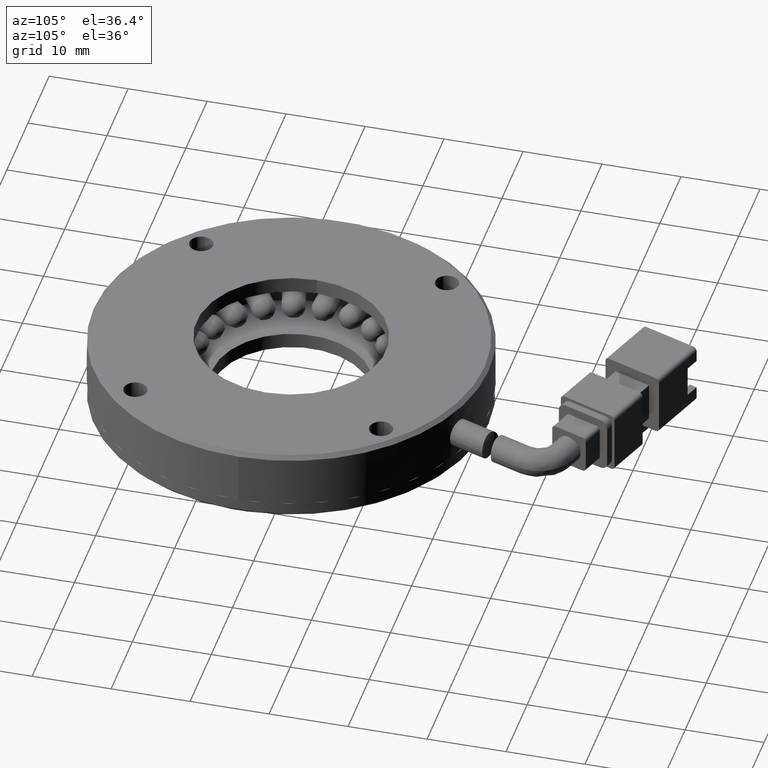
[diagram: clean part render]
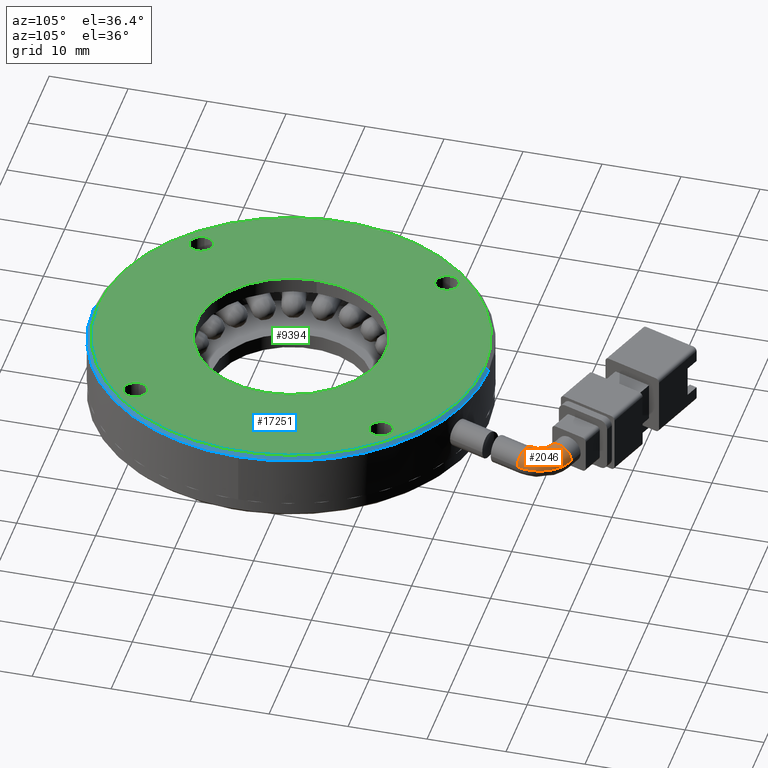
[diagram: same view with three faces highlighted in distinct colors, each labeled with its STEP entity id]
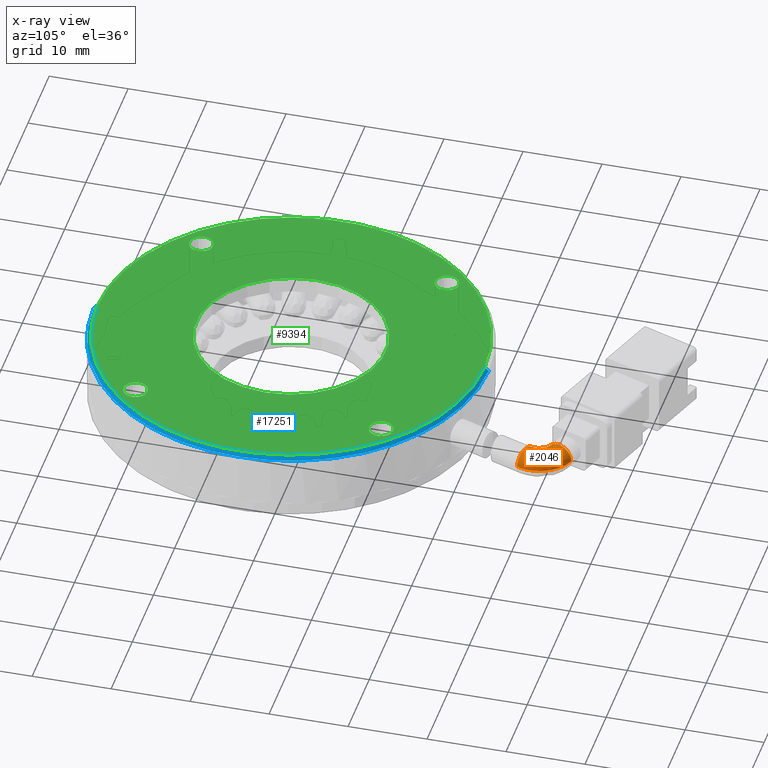
[diagram: x-ray of the same camera — body ghosted, the three highlighted faces saturated]
A machine part, auxiliary view with three faces highlighted in distinct colors.
The next image is the same camera in x-ray (body ghosted, the three faces saturated) — at least one of them is partly hidden behind the body in this view.
Their STEP definitions:

[orange] entity #2046 — the highlighted face is a freeform B-spline surface patch.
#120 = CARTESIAN_POINT ( 'NONE',  ( -106.4522803343568600, 41.33666212137088500, 3.000000000000062200 ) ) ;
#360 = ORIENTED_EDGE ( 'NONE', *, *, #7212, .F. ) ;
#1261 = CARTESIAN_POINT ( 'NONE',  ( -107.4039464507949900, 38.72198095559715400, -0.4999999999999383300 ) ) ;
#1283 = CARTESIAN_POINT ( 'NONE',  ( -107.4039464507949600, 38.72198095559716100, -0.4999999999999375500 ) ) ;
#1376 = VERTEX_POINT ( 'NONE', #25427 ) ;
#2046 = ADVANCED_FACE ( 'NONE', ( #11394 ), #5481, .T. ) ;
#2535 = CARTESIAN_POINT ( 'NONE',  ( -110.2428907187311000, 44.81011658512712600, -0.4999999999999375500 ) ) ;
#2674 = CARTESIAN_POINT ( 'NONE',  ( -111.8674863995280300, 40.34657663639407600, -0.4999999999999375500 ) ) ;
#3022 = DIRECTION ( 'NONE',  ( -2.838830328892222800E-018, -1.846718983974339600E-018, -1.000000000000000000 ) ) ;
#3613 = CARTESIAN_POINT ( 'NONE',  ( -110.8414259695510100, 43.16565449875177100, -0.4999999999999204500 ) ) ;
#3703 = CARTESIAN_POINT ( 'NONE',  ( -111.4399612203709800, 41.52119241237646500, 3.000000000000061700 ) ) ;
#4037 = CIRCLE ( 'NONE', #23412, 4.750000000000001800 ) ;
#4481 = CIRCLE ( 'NONE', #25948, 1.749999999999996200 ) ;
#4728 = DIRECTION ( 'NONE',  ( 0.9396926207859085400, -0.3420201433256683800, 0.0000000000000000000 ) ) ;
#4814 = AXIS2_PLACEMENT_3D ( 'NONE', #15238, #3022, #17311 ) ;
#5481 =( BOUNDED_SURFACE ( )  B_SPLINE_SURFACE ( 3, 3, ( 
 ( #26216, #17619, #16276, #1283 ),
 ( #23920, #15562, #120, #6120 ),
 ( #3703, #26126, #23573, #20539 ),
 ( #22088, #22259, #26302, #7986 ) ),
 .UNSPECIFIED., .F., .F., .T. ) 
 B_SPLINE_SURFACE_WITH_KNOTS ( ( 4, 4 ),
 ( 4, 4 ),
 ( 0.0000000000000000000, 1.000000000000000000 ),
 ( 0.0000000000000000000, 1.000000000000000000 ),
 .UNSPECIFIED. ) 
 GEOMETRIC_REPRESENTATION_ITEM ( )  RATIONAL_B_SPLINE_SURFACE ( (
 ( 1.000000000000000000, 0.8047378541243658300, 0.8047378541243658300, 1.000000000000000000),
 ( 0.3333333333333333700, 0.2682459513747886300, 0.2682459513747886300, 0.3333333333333333700),
 ( 0.3333333333333333700, 0.2682459513747886300, 0.2682459513747886300, 0.3333333333333333700),
 ( 1.000000000000000000, 0.8047378541243658300, 0.8047378541243658300, 1.000000000000000000) ) ) 
 REPRESENTATION_ITEM ( '' )  SURFACE ( )  );
#5678 = DIRECTION ( 'NONE',  ( 0.3420201433256679900, 0.9396926207859087600, -6.195440985631467600E-017 ) ) ;
#6120 = CARTESIAN_POINT ( 'NONE',  ( -107.4039464507949600, 38.72198095559716100, 3.000000000000061700 ) ) ;
#6150 = AXIS2_PLACEMENT_3D ( 'NONE', #3613, #17886, #5678 ) ;
#6256 = CARTESIAN_POINT ( 'NONE',  ( -109.0484085371703000, 39.32051620641706800, -0.4999999999999375500 ) ) ;
#7212 = EDGE_CURVE ( 'NONE', #14380, #7659, #4037, .T. ) ;
#7557 = CARTESIAN_POINT ( 'NONE',  ( -110.6928706235456600, 39.91905145723699600, -0.4999999999999376600 ) ) ;
#7659 = VERTEX_POINT ( 'NONE', #1261 ) ;
#7986 = CARTESIAN_POINT ( 'NONE',  ( -110.6928706235456300, 39.91905145723701100, -0.4999999999999373300 ) ) ;
#8100 = EDGE_CURVE ( 'NONE', #1376, #11597, #22464, .T. ) ;
#8316 = DIRECTION ( 'NONE',  ( 0.9396926207859087600, -0.3420201433256679900, 0.0000000000000000000 ) ) ;
#9641 = EDGE_LOOP ( 'NONE', ( #18071, #23401, #25328, #360 ) ) ;
#11394 = FACE_OUTER_BOUND ( 'NONE', #9641, .T. ) ;
#11597 = VERTEX_POINT ( 'NONE', #7557 ) ;
#14380 = VERTEX_POINT ( 'NONE', #2535 ) ;
#15184 = CIRCLE ( 'NONE', #6150, 1.749999999999996200 ) ;
#15238 = CARTESIAN_POINT ( 'NONE',  ( -111.8674863995280300, 40.34657663639407600, -0.4999999999999373300 ) ) ;
#15562 = CARTESIAN_POINT ( 'NONE',  ( -107.6282095529574100, 43.85845046868904300, 3.000000000000062200 ) ) ;
#16276 = CARTESIAN_POINT ( 'NONE',  ( -106.4522803343568600, 41.33666212137087800, -0.4999999999999375500 ) ) ;
#16806 = EDGE_CURVE ( 'NONE', #11597, #7659, #4481, .T. ) ;
#16970 = DIRECTION ( 'NONE',  ( -2.838830328892222800E-018, -1.846718983974339600E-018, -1.000000000000000000 ) ) ;
#17311 = DIRECTION ( 'NONE',  ( 0.9396926207859080900, -0.3420201433256696000, 0.0000000000000000000 ) ) ;
#17619 = CARTESIAN_POINT ( 'NONE',  ( -107.6282095529573900, 43.85845046868904300, -0.4999999999999375500 ) ) ;
#17886 = DIRECTION ( 'NONE',  ( -0.9396926207859080900, 0.3420201433256694900, 2.200085921048893100E-016 ) ) ;
#18071 = ORIENTED_EDGE ( 'NONE', *, *, #22298, .F. ) ;
#20518 = DIRECTION ( 'NONE',  ( 0.3420201433256692700, 0.9396926207859082100, -2.706285357870903100E-018 ) ) ;
#20539 = CARTESIAN_POINT ( 'NONE',  ( -110.6928706235456300, 39.91905145723701100, 3.000000000000061700 ) ) ;
#22088 = CARTESIAN_POINT ( 'NONE',  ( -111.4399612203709600, 41.52119241237646500, -0.4999999999999373300 ) ) ;
#22259 = CARTESIAN_POINT ( 'NONE',  ( -110.7518872293778900, 41.27075396068223500, -0.4999999999999372700 ) ) ;
#22298 = EDGE_CURVE ( 'NONE', #1376, #14380, #15184, .T. ) ;
#22464 = CIRCLE ( 'NONE', #4814, 1.250000000000008700 ) ;
#23401 = ORIENTED_EDGE ( 'NONE', *, *, #8100, .T. ) ;
#23412 = AXIS2_PLACEMENT_3D ( 'NONE', #2674, #16970, #4728 ) ;
#23573 = CARTESIAN_POINT ( 'NONE',  ( -110.4424321718514100, 40.60712544823011400, 3.000000000000062200 ) ) ;
#23920 = CARTESIAN_POINT ( 'NONE',  ( -110.2428907187310900, 44.81011658512714000, 3.000000000000061700 ) ) ;
#25328 = ORIENTED_EDGE ( 'NONE', *, *, #16806, .T. ) ;
#25427 = CARTESIAN_POINT ( 'NONE',  ( -111.4399612203709300, 41.52119241237645000, -0.4999999999999373300 ) ) ;
#25948 = AXIS2_PLACEMENT_3D ( 'NONE', #6256, #20518, #8316 ) ;
#26126 = CARTESIAN_POINT ( 'NONE',  ( -110.7518872293779000, 41.27075396068224900, 3.000000000000062200 ) ) ;
#26216 = CARTESIAN_POINT ( 'NONE',  ( -110.2428907187311000, 44.81011658512714000, -0.4999999999999375500 ) ) ;
#26302 = CARTESIAN_POINT ( 'NONE',  ( -110.4424321718514100, 40.60712544823010000, -0.4999999999999372700 ) ) ;

[blue] entity #17251 — the highlighted conical surface has half-angle 45 deg.
#30 = EDGE_CURVE ( 'NONE', #22153, #94, #23762, .T. ) ;
#94 = VERTEX_POINT ( 'NONE', #24756 ) ;
#169 = DIRECTION ( 'NONE',  ( 0.0000000000000000000, -8.673617379884035500E-018, -1.000000000000000000 ) ) ;
#536 = EDGE_CURVE ( 'NONE', #22153, #14027, #16401, .T. ) ;
#997 = ORIENTED_EDGE ( 'NONE', *, *, #536, .F. ) ;
#2456 = AXIS2_PLACEMENT_3D ( 'NONE', #8324, #22589, #10345 ) ;
#2720 = EDGE_CURVE ( 'NONE', #8083, #20612, #14239, .T. ) ;
#3301 = ORIENTED_EDGE ( 'NONE', *, *, #25234, .T. ) ;
#3727 = DIRECTION ( 'NONE',  ( -1.000000000000000000, 0.0000000000000000000, 0.0000000000000000000 ) ) ;
#3815 = DIRECTION ( 'NONE',  ( 0.0000000000000000000, 0.0000000000000000000, 1.000000000000000000 ) ) ;
#3852 = FACE_OUTER_BOUND ( 'NONE', #10570, .T. ) ;
#3901 = CARTESIAN_POINT ( 'NONE',  ( -121.0083944312392800, 6.460725025466879300, 3.000000000000048800 ) ) ;
#5220 = DIRECTION ( 'NONE',  ( 8.659560562354930400E-017, -0.7071067811865472400, -0.7071067811865479100 ) ) ;
#6010 = LINE ( 'NONE', #17456, #16862 ) ;
#6132 = ORIENTED_EDGE ( 'NONE', *, *, #30, .T. ) ;
#6185 = VECTOR ( 'NONE', #8090, 999.9999999999998900 ) ;
#6492 = ORIENTED_EDGE ( 'NONE', *, *, #14867, .T. ) ;
#6968 = CARTESIAN_POINT ( 'NONE',  ( -96.00839443123928200, 6.460725025466882900, 3.000000000000048800 ) ) ;
#7088 = CARTESIAN_POINT ( 'NONE',  ( -121.0083944312392800, 30.96072502546687100, 3.500000000000063100 ) ) ;
#8083 = VERTEX_POINT ( 'NONE', #17132 ) ;
#8090 = DIRECTION ( 'NONE',  ( 0.0000000000000000000, 0.7071067811865472400, -0.7071067811865479100 ) ) ;
#8324 = CARTESIAN_POINT ( 'NONE',  ( -121.0083944312392800, 6.460725025466879300, 3.000000000000048800 ) ) ;
#8463 = CIRCLE ( 'NONE', #2456, 25.00000000000002100 ) ;
#9274 = CARTESIAN_POINT ( 'NONE',  ( -121.0083944312392800, 31.46072502546688900, 3.000000000000048400 ) ) ;
#9403 = DIRECTION ( 'NONE',  ( 0.0000000000000000000, -8.673617379884035500E-018, -1.000000000000000000 ) ) ;
#9424 = DIRECTION ( 'NONE',  ( 0.0000000000000000000, 1.000000000000000000, 0.0000000000000000000 ) ) ;
#9568 = CARTESIAN_POINT ( 'NONE',  ( -121.0083944312392800, 6.460725025466879300, 3.500000000000063100 ) ) ;
#10345 = DIRECTION ( 'NONE',  ( -1.000000000000000000, 0.0000000000000000000, 0.0000000000000000000 ) ) ;
#10570 = EDGE_LOOP ( 'NONE', ( #6132, #3301, #14200, #6492, #997 ) ) ;
#11229 = CARTESIAN_POINT ( 'NONE',  ( -121.0083944312392800, 31.46072502546688900, 3.000000000000048800 ) ) ;
#14027 = VERTEX_POINT ( 'NONE', #11229 ) ;
#14200 = ORIENTED_EDGE ( 'NONE', *, *, #2720, .T. ) ;
#14239 = CIRCLE ( 'NONE', #26053, 25.00000000000002100 ) ;
#14462 = CARTESIAN_POINT ( 'NONE',  ( -121.0083944312392800, 6.460725025466879300, 3.000000000000048800 ) ) ;
#14573 = AXIS2_PLACEMENT_3D ( 'NONE', #9568, #9403, #9424 ) ;
#14867 = EDGE_CURVE ( 'NONE', #20612, #14027, #8463, .T. ) ;
#16401 = LINE ( 'NONE', #9274, #6185 ) ;
#16862 = VECTOR ( 'NONE', #5220, 999.9999999999998900 ) ;
#17132 = CARTESIAN_POINT ( 'NONE',  ( -121.0083944312392800, -18.53927497453312900, 3.000000000000048800 ) ) ;
#17251 = ADVANCED_FACE ( 'NONE', ( #3852 ), #17569, .T. ) ;
#17456 = CARTESIAN_POINT ( 'NONE',  ( -121.0083944312392800, -18.53927497453312900, 3.000000000000048800 ) ) ;
#17569 = CONICAL_SURFACE ( 'NONE', #22601, 25.00000000000000700, 0.7853981633974479500 ) ;
#20612 = VERTEX_POINT ( 'NONE', #6968 ) ;
#22153 = VERTEX_POINT ( 'NONE', #7088 ) ;
#22589 = DIRECTION ( 'NONE',  ( 0.0000000000000000000, 0.0000000000000000000, 1.000000000000000000 ) ) ;
#22601 = AXIS2_PLACEMENT_3D ( 'NONE', #14462, #169, #22649 ) ;
#22649 = DIRECTION ( 'NONE',  ( 0.0000000000000000000, 1.000000000000000000, -1.734723475976806500E-017 ) ) ;
#23762 = CIRCLE ( 'NONE', #14573, 24.49999999999999300 ) ;
#24756 = CARTESIAN_POINT ( 'NONE',  ( -121.0083944312392800, -18.03927497453311400, 3.500000000000063100 ) ) ;
#25234 = EDGE_CURVE ( 'NONE', #94, #8083, #6010, .T. ) ;
#26053 = AXIS2_PLACEMENT_3D ( 'NONE', #3901, #3815, #3727 ) ;

[green] entity #9394 — the highlighted planar face has unit normal (0, 0, -1).
#30 = EDGE_CURVE ( 'NONE', #22153, #94, #23762, .T. ) ;
#56 = CARTESIAN_POINT ( 'NONE',  ( -121.0083944312392800, 6.460725025466879300, 3.500000000000063100 ) ) ;
#73 = ORIENTED_EDGE ( 'NONE', *, *, #15315, .F. ) ;
#94 = VERTEX_POINT ( 'NONE', #24756 ) ;
#220 = PLANE ( 'NONE',  #25957 ) ;
#254 = EDGE_CURVE ( 'NONE', #7464, #2846, #8119, .T. ) ;
#271 = ORIENTED_EDGE ( 'NONE', *, *, #2106, .F. ) ;
#310 = DIRECTION ( 'NONE',  ( 0.0000000000000000000, 0.0000000000000000000, -1.000000000000000000 ) ) ;
#315 = EDGE_CURVE ( 'NONE', #10918, #19915, #16426, .T. ) ;
#754 = FACE_OUTER_BOUND ( 'NONE', #24486, .T. ) ;
#970 = EDGE_CURVE ( 'NONE', #25691, #11404, #20778, .T. ) ;
#1092 = AXIS2_PLACEMENT_3D ( 'NONE', #3736, #18009, #5786 ) ;
#1384 = EDGE_CURVE ( 'NONE', #18615, #17551, #22019, .T. ) ;
#1463 = CARTESIAN_POINT ( 'NONE',  ( -105.4520452451353200, -9.095624160637248300, 3.500000000000063100 ) ) ;
#1509 = CIRCLE ( 'NONE', #16612, 1.499999999999987600 ) ;
#1603 = AXIS2_PLACEMENT_3D ( 'NONE', #22148, #22231, #22315 ) ;
#1699 = EDGE_LOOP ( 'NONE', ( #24219, #73 ) ) ;
#1764 = DIRECTION ( 'NONE',  ( -1.000000000000000000, 0.0000000000000000000, 0.0000000000000000000 ) ) ;
#2101 = DIRECTION ( 'NONE',  ( -1.000000000000000000, 0.0000000000000000000, 0.0000000000000000000 ) ) ;
#2106 = EDGE_CURVE ( 'NONE', #18392, #16872, #24106, .T. ) ;
#2545 = CARTESIAN_POINT ( 'NONE',  ( -105.4520452451352100, 22.01707421157089700, 3.500000000000063100 ) ) ;
#2715 = ORIENTED_EDGE ( 'NONE', *, *, #970, .F. ) ;
#2846 = VERTEX_POINT ( 'NONE', #15240 ) ;
#2869 = CARTESIAN_POINT ( 'NONE',  ( -109.0083944312392800, 6.460725025466881100, 3.500000000000063100 ) ) ;
#2908 = ORIENTED_EDGE ( 'NONE', *, *, #10171, .F. ) ;
#3068 = CARTESIAN_POINT ( 'NONE',  ( -135.0647436173434800, -9.095624160637029800, 3.500000000000063100 ) ) ;
#3526 = DIRECTION ( 'NONE',  ( -1.000000000000000000, 0.0000000000000000000, 0.0000000000000000000 ) ) ;
#3579 = ORIENTED_EDGE ( 'NONE', *, *, #1384, .F. ) ;
#3736 = CARTESIAN_POINT ( 'NONE',  ( -136.5647436173434800, -9.095624160637029800, 3.500000000000063100 ) ) ;
#4605 = DIRECTION ( 'NONE',  ( -1.000000000000000000, 0.0000000000000000000, 0.0000000000000000000 ) ) ;
#5309 = DIRECTION ( 'NONE',  ( 0.0000000000000000000, -8.673617379884035500E-018, -1.000000000000000000 ) ) ;
#5786 = DIRECTION ( 'NONE',  ( -1.000000000000000000, 0.0000000000000000000, 0.0000000000000000000 ) ) ;
#5911 = AXIS2_PLACEMENT_3D ( 'NONE', #16986, #14996, #14903 ) ;
#6088 = DIRECTION ( 'NONE',  ( 0.0000000000000000000, 0.0000000000000000000, 1.000000000000000000 ) ) ;
#6197 = FACE_BOUND ( 'NONE', #1699, .T. ) ;
#6350 = ORIENTED_EDGE ( 'NONE', *, *, #6518, .F. ) ;
#6460 = AXIS2_PLACEMENT_3D ( 'NONE', #56, #14347, #2101 ) ;
#6518 = EDGE_CURVE ( 'NONE', #17551, #18615, #25734, .T. ) ;
#6803 = FACE_BOUND ( 'NONE', #8184, .T. ) ;
#7088 = CARTESIAN_POINT ( 'NONE',  ( -121.0083944312392800, 30.96072502546687100, 3.500000000000063100 ) ) ;
#7464 = VERTEX_POINT ( 'NONE', #17161 ) ;
#8119 = CIRCLE ( 'NONE', #1603, 1.500000000000001300 ) ;
#8184 = EDGE_LOOP ( 'NONE', ( #6350, #3579 ) ) ;
#9134 = EDGE_CURVE ( 'NONE', #94, #22153, #24531, .T. ) ;
#9394 = ADVANCED_FACE ( 'NONE', ( #6803, #17059, #11609, #22483, #6197, #754 ), #220, .F. ) ;
#9403 = DIRECTION ( 'NONE',  ( 0.0000000000000000000, -8.673617379884035500E-018, -1.000000000000000000 ) ) ;
#9424 = DIRECTION ( 'NONE',  ( 0.0000000000000000000, 1.000000000000000000, 0.0000000000000000000 ) ) ;
#9552 = DIRECTION ( 'NONE',  ( -1.000000000000000000, 0.0000000000000000000, 0.0000000000000000000 ) ) ;
#9568 = CARTESIAN_POINT ( 'NONE',  ( -121.0083944312392800, 6.460725025466879300, 3.500000000000063100 ) ) ;
#9820 = AXIS2_PLACEMENT_3D ( 'NONE', #9827, #6088, #9552 ) ;
#9827 = CARTESIAN_POINT ( 'NONE',  ( -105.4520452451353200, -9.095624160637248300, 3.500000000000063100 ) ) ;
#10171 = EDGE_CURVE ( 'NONE', #11404, #25691, #15067, .T. ) ;
#10918 = VERTEX_POINT ( 'NONE', #14741 ) ;
#11071 = CIRCLE ( 'NONE', #14623, 1.500000000000001300 ) ;
#11404 = VERTEX_POINT ( 'NONE', #19015 ) ;
#11609 = FACE_BOUND ( 'NONE', #13057, .T. ) ;
#12526 = CARTESIAN_POINT ( 'NONE',  ( -109.0083944312392800, 6.460725025466879300, 3.500000000000062200 ) ) ;
#12564 = ORIENTED_EDGE ( 'NONE', *, *, #25336, .F. ) ;
#13057 = EDGE_LOOP ( 'NONE', ( #12564, #20700 ) ) ;
#13130 = ORIENTED_EDGE ( 'NONE', *, *, #9134, .F. ) ;
#14005 = DIRECTION ( 'NONE',  ( 0.0000000000000000000, 0.0000000000000000000, 1.000000000000000000 ) ) ;
#14347 = DIRECTION ( 'NONE',  ( 0.0000000000000000000, 0.0000000000000000000, 1.000000000000000000 ) ) ;
#14573 = AXIS2_PLACEMENT_3D ( 'NONE', #9568, #9403, #9424 ) ;
#14586 = DIRECTION ( 'NONE',  ( -1.000000000000000000, 0.0000000000000000000, -0.0000000000000000000 ) ) ;
#14623 = AXIS2_PLACEMENT_3D ( 'NONE', #26156, #14005, #1764 ) ;
#14741 = CARTESIAN_POINT ( 'NONE',  ( -103.9520452451353400, -9.095624160637248300, 3.500000000000063100 ) ) ;
#14903 = DIRECTION ( 'NONE',  ( -1.000000000000000000, 0.0000000000000000000, 0.0000000000000000000 ) ) ;
#14996 = DIRECTION ( 'NONE',  ( 0.0000000000000000000, 0.0000000000000000000, 1.000000000000000000 ) ) ;
#15067 = CIRCLE ( 'NONE', #1092, 1.500000000000001300 ) ;
#15240 = CARTESIAN_POINT ( 'NONE',  ( -135.0647436173431400, 22.01707421157111700, 3.500000000000063100 ) ) ;
#15315 = EDGE_CURVE ( 'NONE', #2846, #7464, #11071, .T. ) ;
#15751 = DIRECTION ( 'NONE',  ( 0.0000000000000000000, 0.0000000000000000000, 1.000000000000000000 ) ) ;
#16164 = EDGE_LOOP ( 'NONE', ( #271, #18709 ) ) ;
#16417 = CARTESIAN_POINT ( 'NONE',  ( -121.0083944312392800, 6.460725025466879300, 3.500000000000063100 ) ) ;
#16426 = CIRCLE ( 'NONE', #9820, 1.499999999999987600 ) ;
#16612 = AXIS2_PLACEMENT_3D ( 'NONE', #1463, #15751, #3526 ) ;
#16795 = DIRECTION ( 'NONE',  ( 0.0000000000000000000, 0.0000000000000000000, 1.000000000000000000 ) ) ;
#16843 = DIRECTION ( 'NONE',  ( 0.0000000000000000000, 0.0000000000000000000, 1.000000000000000000 ) ) ;
#16872 = VERTEX_POINT ( 'NONE', #22665 ) ;
#16986 = CARTESIAN_POINT ( 'NONE',  ( -136.5647436173434800, -9.095624160637029800, 3.500000000000063100 ) ) ;
#17059 = FACE_BOUND ( 'NONE', #16164, .T. ) ;
#17073 = DIRECTION ( 'NONE',  ( -1.000000000000000000, 0.0000000000000000000, 0.0000000000000000000 ) ) ;
#17161 = CARTESIAN_POINT ( 'NONE',  ( -138.0647436173431400, 22.01707421157111700, 3.500000000000063100 ) ) ;
#17461 = AXIS2_PLACEMENT_3D ( 'NONE', #17549, #5309, #19592 ) ;
#17549 = CARTESIAN_POINT ( 'NONE',  ( -121.0083944312392800, 6.460725025466879300, 3.500000000000063100 ) ) ;
#17551 = VERTEX_POINT ( 'NONE', #23593 ) ;
#17981 = AXIS2_PLACEMENT_3D ( 'NONE', #2545, #16843, #4605 ) ;
#18009 = DIRECTION ( 'NONE',  ( 0.0000000000000000000, 0.0000000000000000000, 1.000000000000000000 ) ) ;
#18392 = VERTEX_POINT ( 'NONE', #20622 ) ;
#18615 = VERTEX_POINT ( 'NONE', #2869 ) ;
#18709 = ORIENTED_EDGE ( 'NONE', *, *, #23383, .F. ) ;
#19015 = CARTESIAN_POINT ( 'NONE',  ( -138.0647436173434800, -9.095624160637029800, 3.500000000000063100 ) ) ;
#19219 = DIRECTION ( 'NONE',  ( -1.000000000000000000, 0.0000000000000000000, 0.0000000000000000000 ) ) ;
#19312 = DIRECTION ( 'NONE',  ( 0.0000000000000000000, 0.0000000000000000000, 1.000000000000000000 ) ) ;
#19592 = DIRECTION ( 'NONE',  ( 0.0000000000000000000, 1.000000000000000000, 0.0000000000000000000 ) ) ;
#19915 = VERTEX_POINT ( 'NONE', #20491 ) ;
#20491 = CARTESIAN_POINT ( 'NONE',  ( -106.9520452451353100, -9.095624160637248300, 3.500000000000063100 ) ) ;
#20622 = CARTESIAN_POINT ( 'NONE',  ( -106.9520452451352000, 22.01707421157089700, 3.500000000000063100 ) ) ;
#20700 = ORIENTED_EDGE ( 'NONE', *, *, #315, .F. ) ;
#20778 = CIRCLE ( 'NONE', #5911, 1.500000000000001300 ) ;
#21151 = CARTESIAN_POINT ( 'NONE',  ( -105.4520452451352100, 22.01707421157089700, 3.500000000000063100 ) ) ;
#22019 = CIRCLE ( 'NONE', #25663, 12.00000000000001100 ) ;
#22148 = CARTESIAN_POINT ( 'NONE',  ( -136.5647436173431400, 22.01707421157111700, 3.500000000000063100 ) ) ;
#22153 = VERTEX_POINT ( 'NONE', #7088 ) ;
#22231 = DIRECTION ( 'NONE',  ( 0.0000000000000000000, 0.0000000000000000000, 1.000000000000000000 ) ) ;
#22315 = DIRECTION ( 'NONE',  ( -1.000000000000000000, 0.0000000000000000000, 0.0000000000000000000 ) ) ;
#22323 = CIRCLE ( 'NONE', #17981, 1.499999999999987600 ) ;
#22483 = FACE_BOUND ( 'NONE', #24170, .T. ) ;
#22665 = CARTESIAN_POINT ( 'NONE',  ( -103.9520452451352200, 22.01707421157089700, 3.500000000000063100 ) ) ;
#23383 = EDGE_CURVE ( 'NONE', #16872, #18392, #22323, .T. ) ;
#23593 = CARTESIAN_POINT ( 'NONE',  ( -133.0083944312393100, 6.460725025466879300, 3.500000000000063100 ) ) ;
#23762 = CIRCLE ( 'NONE', #14573, 24.49999999999999300 ) ;
#23809 = ORIENTED_EDGE ( 'NONE', *, *, #30, .F. ) ;
#24106 = CIRCLE ( 'NONE', #25361, 1.499999999999987600 ) ;
#24170 = EDGE_LOOP ( 'NONE', ( #2908, #2715 ) ) ;
#24219 = ORIENTED_EDGE ( 'NONE', *, *, #254, .F. ) ;
#24486 = EDGE_LOOP ( 'NONE', ( #23809, #13130 ) ) ;
#24531 = CIRCLE ( 'NONE', #17461, 24.49999999999999300 ) ;
#24756 = CARTESIAN_POINT ( 'NONE',  ( -121.0083944312392800, -18.03927497453311400, 3.500000000000063100 ) ) ;
#25336 = EDGE_CURVE ( 'NONE', #19915, #10918, #1509, .T. ) ;
#25361 = AXIS2_PLACEMENT_3D ( 'NONE', #21151, #19312, #19219 ) ;
#25663 = AXIS2_PLACEMENT_3D ( 'NONE', #16417, #16795, #17073 ) ;
#25691 = VERTEX_POINT ( 'NONE', #3068 ) ;
#25734 = CIRCLE ( 'NONE', #6460, 12.00000000000001100 ) ;
#25957 = AXIS2_PLACEMENT_3D ( 'NONE', #12526, #310, #14586 ) ;
#26156 = CARTESIAN_POINT ( 'NONE',  ( -136.5647436173431400, 22.01707421157111700, 3.500000000000063100 ) ) ;